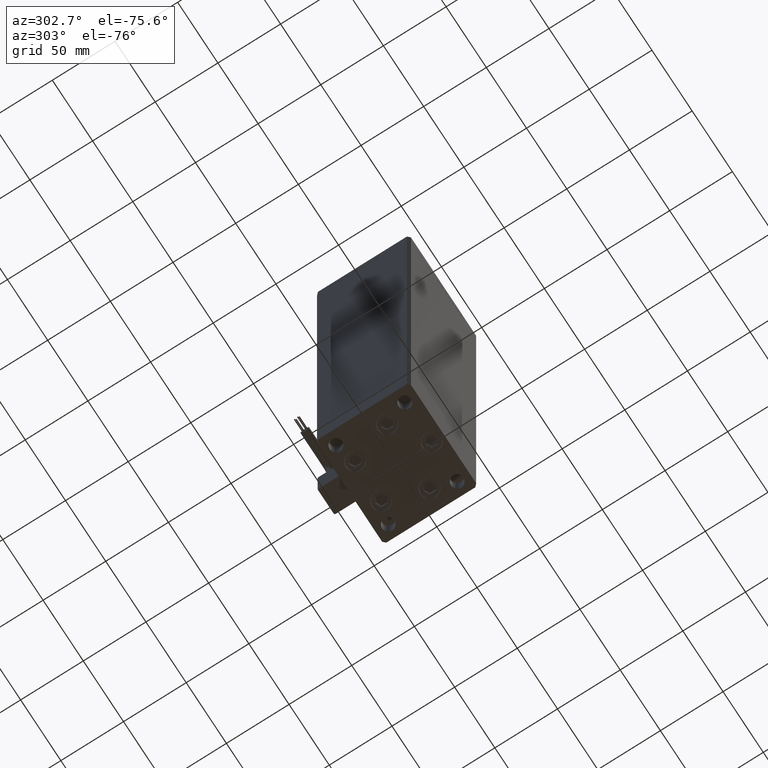
[diagram: clean part render]
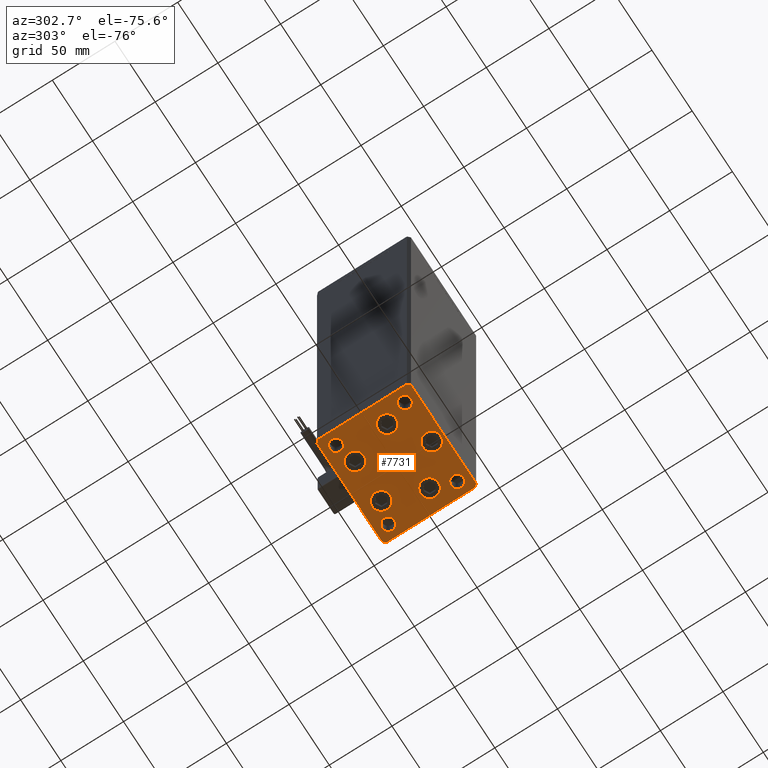
[diagram: same view with one face highlighted and labeled with its STEP entity id]
A machine part, auxiliary view. The second image highlights one B-rep face of the part: STEP entity #7731.
In plain terms, the highlighted planar face has unit normal (0, 0, -1).
Its self-contained STEP definition (entity closure, byte-faithful):
#493 = CIRCLE ( 'NONE', #45450, 5.000000000000000888 ) ;
#1023 = ORIENTED_EDGE ( 'NONE', *, *, #1174, .T. ) ;
#1174 = EDGE_CURVE ( 'NONE', #56277, #1547, #8819, .T. ) ;
#1209 = VERTEX_POINT ( 'NONE', #41035 ) ;
#1353 = CARTESIAN_POINT ( 'NONE',  ( -27.50000000000000000, -27.49999999999999645, 0.000000000000000000 ) ) ;
#1547 = VERTEX_POINT ( 'NONE', #20136 ) ;
#1885 = FACE_BOUND ( 'NONE', #12628, .T. ) ;
#1926 = CIRCLE ( 'NONE', #29109, 4.999999999999997335 ) ;
#2798 = DIRECTION ( 'NONE',  ( 1.000000000000000000, 0.000000000000000000, 0.000000000000000000 ) ) ;
#2917 = CARTESIAN_POINT ( 'NONE',  ( 32.50000000000000000, 27.49999999999999645, 0.000000000000000000 ) ) ;
#2921 = DIRECTION ( 'NONE',  ( -0.000000000000000000, 0.000000000000000000, 1.000000000000000000 ) ) ;
#3083 = DIRECTION ( 'NONE',  ( 0.000000000000000000, -0.000000000000000000, -1.000000000000000000 ) ) ;
#3232 = AXIS2_PLACEMENT_3D ( 'NONE', #7703, #25588, #6834 ) ;
#3520 = CIRCLE ( 'NONE', #20404, 7.249999999999999112 ) ;
#3904 = DIRECTION ( 'NONE',  ( 1.000000000000000000, 0.000000000000000000, 0.000000000000000000 ) ) ;
#3936 = CARTESIAN_POINT ( 'NONE',  ( 26.39865316429776954, -9.333333333333330373, 0.000000000000000000 ) ) ;
#4067 = CARTESIAN_POINT ( 'NONE',  ( 16.32291334290542295, 22.75000000000000000, 0.000000000000000000 ) ) ;
#4270 = DIRECTION ( 'NONE',  ( -0.000000000000000000, 0.000000000000000000, 1.000000000000000000 ) ) ;
#4626 = LINE ( 'NONE', #9612, #22126 ) ;
#4898 = ORIENTED_EDGE ( 'NONE', *, *, #35243, .T. ) ;
#5013 = DIRECTION ( 'NONE',  ( 1.000000000000000000, 0.000000000000000000, 0.000000000000000000 ) ) ;
#5149 = CARTESIAN_POINT ( 'NONE',  ( -26.39865316429776954, -9.333333333333337478, 0.000000000000000000 ) ) ;
#5315 = CARTESIAN_POINT ( 'NONE',  ( -23.57291334290543006, 22.74999999999999645, 0.000000000000000000 ) ) ;
#6005 = EDGE_CURVE ( 'NONE', #57133, #23398, #36020, .T. ) ;
#6010 = FACE_BOUND ( 'NONE', #45177, .T. ) ;
#6210 = AXIS2_PLACEMENT_3D ( 'NONE', #8390, #4270, #13662 ) ;
#6248 = CARTESIAN_POINT ( 'NONE',  ( -40.49999999999999289, -37.50000000000002132, 0.000000000000000000 ) ) ;
#6651 = ORIENTED_EDGE ( 'NONE', *, *, #53118, .F. ) ;
#6737 = VERTEX_POINT ( 'NONE', #27125 ) ;
#6834 = DIRECTION ( 'NONE',  ( 1.000000000000000000, 0.000000000000000000, 0.000000000000000000 ) ) ;
#7040 = EDGE_CURVE ( 'NONE', #53709, #8758, #46673, .T. ) ;
#7703 = CARTESIAN_POINT ( 'NONE',  ( -26.39865316429776954, -9.333333333333337478, 0.000000000000000000 ) ) ;
#7731 = ADVANCED_FACE ( 'NONE', ( #10403, #46170, #6010, #24181, #50854, #42050, #1885, #37660, #10994, #28869 ), #24471, .T. ) ;
#7803 = CIRCLE ( 'NONE', #54668, 7.249999999999999112 ) ;
#7894 = VERTEX_POINT ( 'NONE', #33203 ) ;
#8165 = ORIENTED_EDGE ( 'NONE', *, *, #44828, .T. ) ;
#8363 = VERTEX_POINT ( 'NONE', #14033 ) ;
#8390 = CARTESIAN_POINT ( 'NONE',  ( -32.50000000000000000, 27.50000000000000355, 0.000000000000000000 ) ) ;
#8758 = VERTEX_POINT ( 'NONE', #6248 ) ;
#8819 = LINE ( 'NONE', #40750, #38663 ) ;
#8833 = EDGE_LOOP ( 'NONE', ( #17536, #21493, #1023, #37747, #53166, #17875, #33059, #40556 ) ) ;
#8922 = DIRECTION ( 'NONE',  ( 1.000000000000000000, 0.000000000000000000, 0.000000000000000000 ) ) ;
#9025 = CIRCLE ( 'NONE', #6210, 5.000000000000000888 ) ;
#9447 = AXIS2_PLACEMENT_3D ( 'NONE', #2917, #55135, #38416 ) ;
#9560 = DIRECTION ( 'NONE',  ( 0.000000000000000000, -0.000000000000000000, -1.000000000000000000 ) ) ;
#9610 = DIRECTION ( 'NONE',  ( 1.000000000000000000, 0.000000000000000000, 0.000000000000000000 ) ) ;
#9612 = CARTESIAN_POINT ( 'NONE',  ( 42.49999999999992895, 35.50000000000000000, 0.000000000000000000 ) ) ;
#9751 = VERTEX_POINT ( 'NONE', #36521 ) ;
#9815 = CARTESIAN_POINT ( 'NONE',  ( -40.49999999999999289, -37.50000000000002132, 0.000000000000000000 ) ) ;
#10048 = VERTEX_POINT ( 'NONE', #47573 ) ;
#10403 = FACE_BOUND ( 'NONE', #29809, .T. ) ;
#10759 = VERTEX_POINT ( 'NONE', #48796 ) ;
#10994 = FACE_OUTER_BOUND ( 'NONE', #8833, .T. ) ;
#11118 = CARTESIAN_POINT ( 'NONE',  ( -42.50000000000000711, 35.49999999999997158, 0.000000000000000000 ) ) ;
#11556 = DIRECTION ( 'NONE',  ( 0.000000000000000000, -0.000000000000000000, -1.000000000000000000 ) ) ;
#12044 = EDGE_CURVE ( 'NONE', #52870, #54344, #48281, .T. ) ;
#12427 = EDGE_CURVE ( 'NONE', #16111, #48758, #4626, .T. ) ;
#12561 = CIRCLE ( 'NONE', #3232, 7.249999999999999112 ) ;
#12628 = EDGE_LOOP ( 'NONE', ( #36701, #14115 ) ) ;
#12668 = CARTESIAN_POINT ( 'NONE',  ( -32.50000000000000000, 27.50000000000000355, 0.000000000000000000 ) ) ;
#12957 = EDGE_CURVE ( 'NONE', #1209, #8363, #49252, .T. ) ;
#13071 = ORIENTED_EDGE ( 'NONE', *, *, #42140, .T. ) ;
#13188 = ORIENTED_EDGE ( 'NONE', *, *, #14042, .F. ) ;
#13297 = DIRECTION ( 'NONE',  ( 1.000000000000000000, 0.000000000000000000, 0.000000000000000000 ) ) ;
#13322 = DIRECTION ( 'NONE',  ( 1.000000000000000000, 0.000000000000000000, 0.000000000000000000 ) ) ;
#13371 = DIRECTION ( 'NONE',  ( 1.000000000000000000, 0.000000000000000000, 0.000000000000000000 ) ) ;
#13500 = CARTESIAN_POINT ( 'NONE',  ( 3.429011037612589276E-15, -28.00000000000000000, 0.000000000000000000 ) ) ;
#13662 = DIRECTION ( 'NONE',  ( 1.000000000000000000, 0.000000000000000000, 0.000000000000000000 ) ) ;
#13891 = CARTESIAN_POINT ( 'NONE',  ( 26.39865316429776954, -9.333333333333330373, 0.000000000000000000 ) ) ;
#14006 = DIRECTION ( 'NONE',  ( 0.000000000000000000, -0.000000000000000000, -1.000000000000000000 ) ) ;
#14033 = CARTESIAN_POINT ( 'NONE',  ( 9.072913342905424727, 22.75000000000000000, 0.000000000000000000 ) ) ;
#14042 = EDGE_CURVE ( 'NONE', #14347, #46297, #9025, .T. ) ;
#14115 = ORIENTED_EDGE ( 'NONE', *, *, #29819, .T. ) ;
#14347 = VERTEX_POINT ( 'NONE', #35870 ) ;
#15543 = CIRCLE ( 'NONE', #25874, 5.000000000000000888 ) ;
#15770 = EDGE_CURVE ( 'NONE', #8363, #1209, #56864, .T. ) ;
#15825 = ORIENTED_EDGE ( 'NONE', *, *, #15770, .T. ) ;
#16111 = VERTEX_POINT ( 'NONE', #56816 ) ;
#16157 = CARTESIAN_POINT ( 'NONE',  ( -32.50000000000000000, -27.49999999999999645, 0.000000000000000000 ) ) ;
#16170 = CARTESIAN_POINT ( 'NONE',  ( -33.64865316429776954, -9.333333333333337478, 0.000000000000000000 ) ) ;
#16238 = LINE ( 'NONE', #21209, #57717 ) ;
#16253 = CARTESIAN_POINT ( 'NONE',  ( 32.50000000000000000, -27.49999999999999645, 0.000000000000000000 ) ) ;
#17178 = CARTESIAN_POINT ( 'NONE',  ( -42.50000000000000711, 35.49999999999997158, 0.000000000000000000 ) ) ;
#17320 = EDGE_CURVE ( 'NONE', #51828, #7894, #3520, .T. ) ;
#17468 = CARTESIAN_POINT ( 'NONE',  ( 16.32291334290542295, 22.75000000000000000, 0.000000000000000000 ) ) ;
#17536 = ORIENTED_EDGE ( 'NONE', *, *, #7040, .T. ) ;
#17875 = ORIENTED_EDGE ( 'NONE', *, *, #56713, .T. ) ;
#17885 = DIRECTION ( 'NONE',  ( 1.000000000000000000, 0.000000000000000000, 0.000000000000000000 ) ) ;
#18321 = LINE ( 'NONE', #9815, #48885 ) ;
#18521 = EDGE_CURVE ( 'NONE', #1547, #16111, #38434, .T. ) ;
#18556 = ORIENTED_EDGE ( 'NONE', *, *, #26531, .T. ) ;
#18668 = CIRCLE ( 'NONE', #45776, 5.000000000000000888 ) ;
#20073 = DIRECTION ( 'NONE',  ( -0.000000000000000000, 0.000000000000000000, 1.000000000000000000 ) ) ;
#20136 = CARTESIAN_POINT ( 'NONE',  ( 42.50000000000000711, -35.50000000000000000, 0.000000000000000000 ) ) ;
#20248 = EDGE_LOOP ( 'NONE', ( #15825, #29018 ) ) ;
#20354 = AXIS2_PLACEMENT_3D ( 'NONE', #4067, #20816, #30762 ) ;
#20404 = AXIS2_PLACEMENT_3D ( 'NONE', #3936, #3083, #2798 ) ;
#20483 = VECTOR ( 'NONE', #20838, 1000.000000000000000 ) ;
#20675 = EDGE_CURVE ( 'NONE', #54344, #52870, #27090, .T. ) ;
#20737 = VERTEX_POINT ( 'NONE', #1353 ) ;
#20816 = DIRECTION ( 'NONE',  ( 0.000000000000000000, -0.000000000000000000, -1.000000000000000000 ) ) ;
#20838 = DIRECTION ( 'NONE',  ( -1.172770800660376741E-15, 1.000000000000000000, 0.000000000000000000 ) ) ;
#20893 = DIRECTION ( 'NONE',  ( -0.000000000000000000, 0.000000000000000000, 1.000000000000000000 ) ) ;
#21209 = CARTESIAN_POINT ( 'NONE',  ( -40.50000000000000711, 37.49999999999997868, 0.000000000000000000 ) ) ;
#21428 = AXIS2_PLACEMENT_3D ( 'NONE', #13891, #49653, #13297 ) ;
#21493 = ORIENTED_EDGE ( 'NONE', *, *, #54870, .T. ) ;
#21568 = LINE ( 'NONE', #17178, #21671 ) ;
#21671 = VECTOR ( 'NONE', #38893, 1000.000000000000000 ) ;
#21690 = AXIS2_PLACEMENT_3D ( 'NONE', #16253, #11556, #37937 ) ;
#22126 = VECTOR ( 'NONE', #22506, 1000.000000000000114 ) ;
#22506 = DIRECTION ( 'NONE',  ( -0.7071067811865474617, 0.7071067811865474617, 0.000000000000000000 ) ) ;
#23001 = AXIS2_PLACEMENT_3D ( 'NONE', #49272, #27252, #35491 ) ;
#23239 = ORIENTED_EDGE ( 'NONE', *, *, #37185, .T. ) ;
#23398 = VERTEX_POINT ( 'NONE', #51076 ) ;
#24010 = EDGE_CURVE ( 'NONE', #26362, #9751, #1926, .T. ) ;
#24181 = FACE_BOUND ( 'NONE', #27625, .T. ) ;
#24286 = AXIS2_PLACEMENT_3D ( 'NONE', #13500, #37138, #17885 ) ;
#24471 = PLANE ( 'NONE',  #34268 ) ;
#24545 = EDGE_CURVE ( 'NONE', #31778, #10048, #46892, .T. ) ;
#25236 = CARTESIAN_POINT ( 'NONE',  ( 42.50000000000000711, -35.50000000000000000, 0.000000000000000000 ) ) ;
#25291 = DIRECTION ( 'NONE',  ( 1.000000000000000000, 0.000000000000000000, 0.000000000000000000 ) ) ;
#25530 = VECTOR ( 'NONE', #46137, 1000.000000000000000 ) ;
#25588 = DIRECTION ( 'NONE',  ( 0.000000000000000000, -0.000000000000000000, -1.000000000000000000 ) ) ;
#25787 = CARTESIAN_POINT ( 'NONE',  ( 32.50000000000000000, 27.49999999999999645, 0.000000000000000000 ) ) ;
#25874 = AXIS2_PLACEMENT_3D ( 'NONE', #54087, #53502, #13322 ) ;
#26362 = VERTEX_POINT ( 'NONE', #55977 ) ;
#26531 = EDGE_CURVE ( 'NONE', #10759, #36148, #57265, .T. ) ;
#27090 = CIRCLE ( 'NONE', #24286, 7.250000000000000000 ) ;
#27125 = CARTESIAN_POINT ( 'NONE',  ( -40.50000000000000711, 37.49999999999997868, 0.000000000000000000 ) ) ;
#27175 = LINE ( 'NONE', #41729, #25530 ) ;
#27252 = DIRECTION ( 'NONE',  ( 0.000000000000000000, -0.000000000000000000, -1.000000000000000000 ) ) ;
#27625 = EDGE_LOOP ( 'NONE', ( #30866, #48038 ) ) ;
#28487 = CARTESIAN_POINT ( 'NONE',  ( -42.50000000000000000, -35.50000000000000711, 0.000000000000000000 ) ) ;
#28553 = DIRECTION ( 'NONE',  ( 1.000000000000000000, 0.000000000000000000, 0.000000000000000000 ) ) ;
#28869 = FACE_BOUND ( 'NONE', #46954, .T. ) ;
#29018 = ORIENTED_EDGE ( 'NONE', *, *, #12957, .T. ) ;
#29109 = AXIS2_PLACEMENT_3D ( 'NONE', #34730, #49088, #8922 ) ;
#29809 = EDGE_LOOP ( 'NONE', ( #4898, #18556 ) ) ;
#29819 = EDGE_CURVE ( 'NONE', #9751, #26362, #56316, .T. ) ;
#29908 = CARTESIAN_POINT ( 'NONE',  ( 37.50000000000000000, 27.49999999999999645, 0.000000000000000000 ) ) ;
#30448 = VECTOR ( 'NONE', #55180, 1000.000000000000000 ) ;
#30495 = DIRECTION ( 'NONE',  ( 1.000000000000000000, 0.000000000000000000, 0.000000000000000000 ) ) ;
#30762 = DIRECTION ( 'NONE',  ( 1.000000000000000000, 0.000000000000000000, 0.000000000000000000 ) ) ;
#30866 = ORIENTED_EDGE ( 'NONE', *, *, #20675, .T. ) ;
#31098 = ORIENTED_EDGE ( 'NONE', *, *, #24545, .F. ) ;
#31764 = EDGE_CURVE ( 'NONE', #10048, #31778, #46047, .T. ) ;
#31778 = VERTEX_POINT ( 'NONE', #29908 ) ;
#32096 = DIRECTION ( 'NONE',  ( 1.000000000000000000, 1.713307136767217096E-16, 0.000000000000000000 ) ) ;
#33020 = CARTESIAN_POINT ( 'NONE',  ( -42.50000000000000000, -35.50000000000000711, 0.000000000000000000 ) ) ;
#33059 = ORIENTED_EDGE ( 'NONE', *, *, #47180, .T. ) ;
#33203 = CARTESIAN_POINT ( 'NONE',  ( 33.64865316429776954, -9.333333333333328596, 0.000000000000000000 ) ) ;
#34268 = AXIS2_PLACEMENT_3D ( 'NONE', #42346, #20073, #3904 ) ;
#34407 = DIRECTION ( 'NONE',  ( -0.7071067811865463515, -0.7071067811865487940, 0.000000000000000000 ) ) ;
#34730 = CARTESIAN_POINT ( 'NONE',  ( 32.50000000000000000, -27.49999999999999645, 0.000000000000000000 ) ) ;
#35243 = EDGE_CURVE ( 'NONE', #36148, #10759, #7803, .T. ) ;
#35353 = DIRECTION ( 'NONE',  ( 0.000000000000000000, -0.000000000000000000, -1.000000000000000000 ) ) ;
#35491 = DIRECTION ( 'NONE',  ( 1.000000000000000000, 0.000000000000000000, 0.000000000000000000 ) ) ;
#35870 = CARTESIAN_POINT ( 'NONE',  ( -37.50000000000000711, 27.50000000000000355, 0.000000000000000000 ) ) ;
#36020 = CIRCLE ( 'NONE', #57560, 7.249999999999999112 ) ;
#36097 = CARTESIAN_POINT ( 'NONE',  ( -16.32291334290543006, 22.74999999999999645, 0.000000000000000000 ) ) ;
#36148 = VERTEX_POINT ( 'NONE', #5315 ) ;
#36521 = CARTESIAN_POINT ( 'NONE',  ( 27.50000000000000355, -27.49999999999999645, 0.000000000000000000 ) ) ;
#36701 = ORIENTED_EDGE ( 'NONE', *, *, #24010, .T. ) ;
#37138 = DIRECTION ( 'NONE',  ( 0.000000000000000000, -0.000000000000000000, -1.000000000000000000 ) ) ;
#37185 = EDGE_CURVE ( 'NONE', #23398, #57133, #12561, .T. ) ;
#37660 = FACE_BOUND ( 'NONE', #37943, .T. ) ;
#37747 = ORIENTED_EDGE ( 'NONE', *, *, #18521, .T. ) ;
#37937 = DIRECTION ( 'NONE',  ( 1.000000000000000000, 0.000000000000000000, 0.000000000000000000 ) ) ;
#37943 = EDGE_LOOP ( 'NONE', ( #6651, #13188 ) ) ;
#38318 = EDGE_LOOP ( 'NONE', ( #31098, #41836 ) ) ;
#38416 = DIRECTION ( 'NONE',  ( 1.000000000000000000, 0.000000000000000000, 0.000000000000000000 ) ) ;
#38434 = LINE ( 'NONE', #25236, #20483 ) ;
#38663 = VECTOR ( 'NONE', #40178, 1000.000000000000114 ) ;
#38893 = DIRECTION ( 'NONE',  ( 9.773090005503140331E-17, -1.000000000000000000, 0.000000000000000000 ) ) ;
#39534 = ORIENTED_EDGE ( 'NONE', *, *, #51905, .T. ) ;
#40168 = CARTESIAN_POINT ( 'NONE',  ( -37.50000000000000711, -27.49999999999999645, 0.000000000000000000 ) ) ;
#40178 = DIRECTION ( 'NONE',  ( 0.7071067811865474617, 0.7071067811865474617, 0.000000000000000000 ) ) ;
#40556 = ORIENTED_EDGE ( 'NONE', *, *, #53543, .T. ) ;
#40750 = CARTESIAN_POINT ( 'NONE',  ( 40.50000000000000000, -37.50000000000000711, 0.000000000000000000 ) ) ;
#41035 = CARTESIAN_POINT ( 'NONE',  ( 23.57291334290542295, 22.75000000000000000, 0.000000000000000000 ) ) ;
#41235 = ORIENTED_EDGE ( 'NONE', *, *, #6005, .T. ) ;
#41331 = DIRECTION ( 'NONE',  ( 0.000000000000000000, -0.000000000000000000, -1.000000000000000000 ) ) ;
#41729 = CARTESIAN_POINT ( 'NONE',  ( 40.49999999999991473, 37.50000000000000711, 0.000000000000000000 ) ) ;
#41836 = ORIENTED_EDGE ( 'NONE', *, *, #31764, .F. ) ;
#42050 = FACE_BOUND ( 'NONE', #38318, .T. ) ;
#42140 = EDGE_CURVE ( 'NONE', #20737, #47546, #15543, .T. ) ;
#42303 = CARTESIAN_POINT ( 'NONE',  ( -27.50000000000000000, 27.50000000000000355, 0.000000000000000000 ) ) ;
#42346 = CARTESIAN_POINT ( 'NONE',  ( 0.000000000000000000, 0.000000000000000000, 0.000000000000000000 ) ) ;
#42769 = CARTESIAN_POINT ( 'NONE',  ( -7.249999999999997335, -28.00000000000000000, 0.000000000000000000 ) ) ;
#44826 = CIRCLE ( 'NONE', #21428, 7.249999999999999112 ) ;
#44828 = EDGE_CURVE ( 'NONE', #47546, #20737, #493, .T. ) ;
#45074 = CARTESIAN_POINT ( 'NONE',  ( -16.32291334290543006, 22.74999999999999645, 0.000000000000000000 ) ) ;
#45177 = EDGE_LOOP ( 'NONE', ( #53894, #39534 ) ) ;
#45450 = AXIS2_PLACEMENT_3D ( 'NONE', #16157, #48383, #30495 ) ;
#45776 = AXIS2_PLACEMENT_3D ( 'NONE', #12668, #20893, #25291 ) ;
#46047 = CIRCLE ( 'NONE', #53561, 4.999999999999997335 ) ;
#46137 = DIRECTION ( 'NONE',  ( -1.000000000000000000, -3.426614273534436165E-16, 0.000000000000000000 ) ) ;
#46170 = FACE_BOUND ( 'NONE', #20248, .T. ) ;
#46297 = VERTEX_POINT ( 'NONE', #42303 ) ;
#46673 = LINE ( 'NONE', #28487, #30448 ) ;
#46892 = CIRCLE ( 'NONE', #9447, 4.999999999999997335 ) ;
#46954 = EDGE_LOOP ( 'NONE', ( #13071, #8165 ) ) ;
#47180 = EDGE_CURVE ( 'NONE', #6737, #55528, #16238, .T. ) ;
#47546 = VERTEX_POINT ( 'NONE', #40168 ) ;
#47573 = CARTESIAN_POINT ( 'NONE',  ( 27.50000000000000355, 27.49999999999999645, 0.000000000000000000 ) ) ;
#48038 = ORIENTED_EDGE ( 'NONE', *, *, #12044, .T. ) ;
#48281 = CIRCLE ( 'NONE', #23001, 7.250000000000000000 ) ;
#48383 = DIRECTION ( 'NONE',  ( 0.000000000000000000, -0.000000000000000000, -1.000000000000000000 ) ) ;
#48758 = VERTEX_POINT ( 'NONE', #52121 ) ;
#48796 = CARTESIAN_POINT ( 'NONE',  ( -9.072913342905431833, 22.74999999999999645, 0.000000000000000000 ) ) ;
#48885 = VECTOR ( 'NONE', #32096, 1000.000000000000000 ) ;
#49088 = DIRECTION ( 'NONE',  ( 0.000000000000000000, -0.000000000000000000, -1.000000000000000000 ) ) ;
#49252 = CIRCLE ( 'NONE', #54880, 7.249999999999999112 ) ;
#49272 = CARTESIAN_POINT ( 'NONE',  ( 3.429011037612589276E-15, -28.00000000000000000, 0.000000000000000000 ) ) ;
#49653 = DIRECTION ( 'NONE',  ( 0.000000000000000000, -0.000000000000000000, -1.000000000000000000 ) ) ;
#49665 = CARTESIAN_POINT ( 'NONE',  ( 7.250000000000003553, -28.00000000000000000, 0.000000000000000000 ) ) ;
#50550 = EDGE_LOOP ( 'NONE', ( #41235, #23239 ) ) ;
#50854 = FACE_BOUND ( 'NONE', #50550, .T. ) ;
#51076 = CARTESIAN_POINT ( 'NONE',  ( -19.14865316429777309, -9.333333333333335702, 0.000000000000000000 ) ) ;
#51828 = VERTEX_POINT ( 'NONE', #52322 ) ;
#51905 = EDGE_CURVE ( 'NONE', #7894, #51828, #44826, .T. ) ;
#52121 = CARTESIAN_POINT ( 'NONE',  ( 40.49999999999991473, 37.50000000000000711, 0.000000000000000000 ) ) ;
#52322 = CARTESIAN_POINT ( 'NONE',  ( 19.14865316429777309, -9.333333333333330373, 0.000000000000000000 ) ) ;
#52870 = VERTEX_POINT ( 'NONE', #49665 ) ;
#53118 = EDGE_CURVE ( 'NONE', #46297, #14347, #18668, .T. ) ;
#53166 = ORIENTED_EDGE ( 'NONE', *, *, #12427, .T. ) ;
#53502 = DIRECTION ( 'NONE',  ( 0.000000000000000000, -0.000000000000000000, -1.000000000000000000 ) ) ;
#53543 = EDGE_CURVE ( 'NONE', #55528, #53709, #21568, .T. ) ;
#53561 = AXIS2_PLACEMENT_3D ( 'NONE', #25787, #2921, #56599 ) ;
#53567 = AXIS2_PLACEMENT_3D ( 'NONE', #45074, #14006, #9610 ) ;
#53709 = VERTEX_POINT ( 'NONE', #33020 ) ;
#53894 = ORIENTED_EDGE ( 'NONE', *, *, #17320, .T. ) ;
#54087 = CARTESIAN_POINT ( 'NONE',  ( -32.50000000000000000, -27.49999999999999645, 0.000000000000000000 ) ) ;
#54264 = CARTESIAN_POINT ( 'NONE',  ( 40.50000000000000000, -37.50000000000000711, 0.000000000000000000 ) ) ;
#54344 = VERTEX_POINT ( 'NONE', #42769 ) ;
#54668 = AXIS2_PLACEMENT_3D ( 'NONE', #36097, #41331, #5013 ) ;
#54870 = EDGE_CURVE ( 'NONE', #8758, #56277, #18321, .T. ) ;
#54880 = AXIS2_PLACEMENT_3D ( 'NONE', #17468, #35353, #28553 ) ;
#55135 = DIRECTION ( 'NONE',  ( -0.000000000000000000, 0.000000000000000000, 1.000000000000000000 ) ) ;
#55180 = DIRECTION ( 'NONE',  ( 0.7071067811865463515, -0.7071067811865487940, 0.000000000000000000 ) ) ;
#55528 = VERTEX_POINT ( 'NONE', #11118 ) ;
#55977 = CARTESIAN_POINT ( 'NONE',  ( 37.50000000000000000, -27.49999999999999645, 0.000000000000000000 ) ) ;
#56277 = VERTEX_POINT ( 'NONE', #54264 ) ;
#56316 = CIRCLE ( 'NONE', #21690, 4.999999999999997335 ) ;
#56599 = DIRECTION ( 'NONE',  ( 1.000000000000000000, 0.000000000000000000, 0.000000000000000000 ) ) ;
#56713 = EDGE_CURVE ( 'NONE', #48758, #6737, #27175, .T. ) ;
#56816 = CARTESIAN_POINT ( 'NONE',  ( 42.49999999999992895, 35.50000000000000000, 0.000000000000000000 ) ) ;
#56864 = CIRCLE ( 'NONE', #20354, 7.249999999999999112 ) ;
#57133 = VERTEX_POINT ( 'NONE', #16170 ) ;
#57265 = CIRCLE ( 'NONE', #53567, 7.249999999999999112 ) ;
#57560 = AXIS2_PLACEMENT_3D ( 'NONE', #5149, #9560, #13371 ) ;
#57717 = VECTOR ( 'NONE', #34407, 1000.000000000000000 ) ;